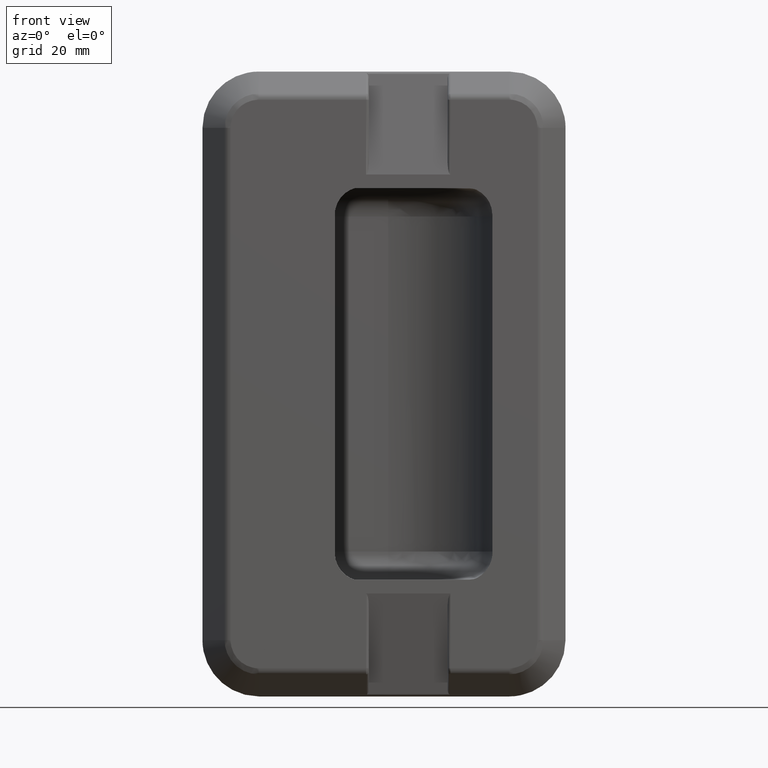
[diagram: clean part render]
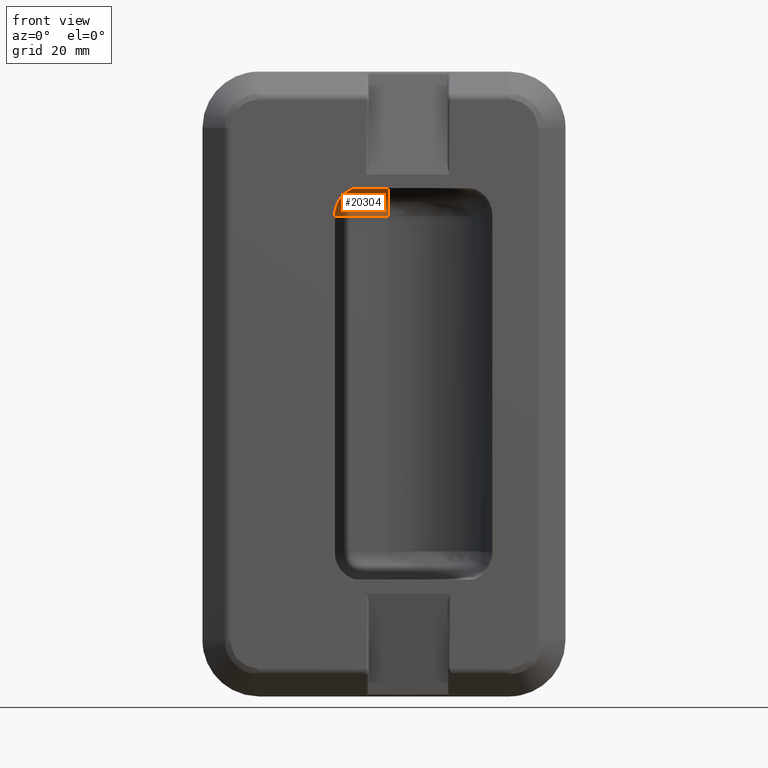
[diagram: same view with one face highlighted and labeled with its STEP entity id]
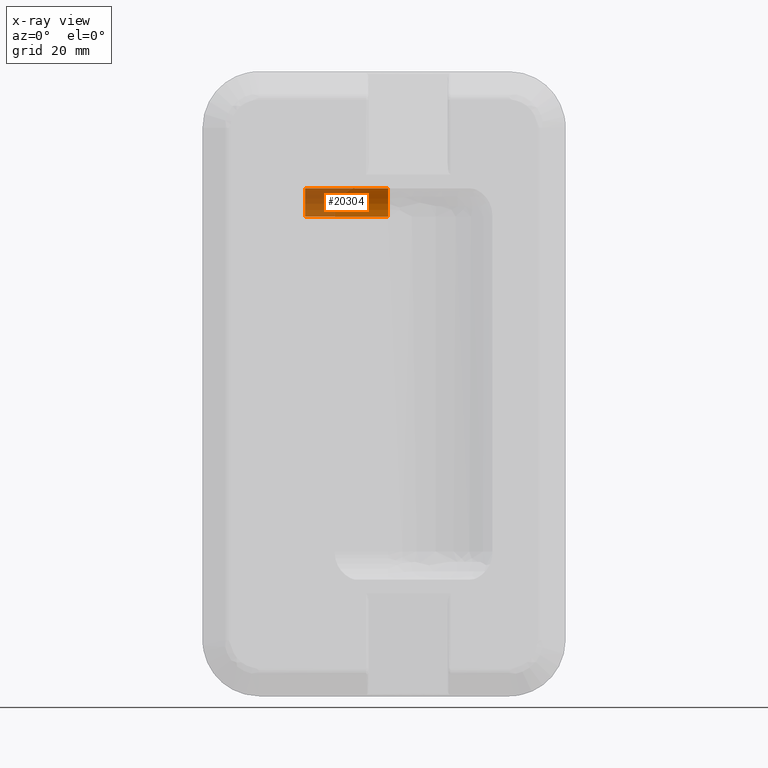
[diagram: x-ray of the same camera — body ghosted, the highlighted face saturated]
A machine part, front view. The second image highlights one B-rep face of the part: STEP entity #20304.
The next image is the same camera in x-ray: the body ghosted, the highlighted face saturated — about 42% of this face is hidden behind the body in this view.
In plain terms, the highlighted face is a freeform B-spline surface patch.
Its self-contained STEP definition (entity closure, byte-faithful):
#20214=CARTESIAN_POINT('',(32.984074000000000,9.000017000000002,34.750000000000000));
#20215=VERTEX_POINT('',#20214);
#20229=CARTESIAN_POINT('',(32.984074000000000,14.000017000000019,29.750000000000000));
#20230=VERTEX_POINT('',#20229);
#20231=CARTESIAN_POINT('',(32.984074000000000,14.000017000000000,29.750000000000000));
#20232=CARTESIAN_POINT('',(32.984073999999993,14.000017000000000,34.749999999999986));
#20233=CARTESIAN_POINT('',(32.984074000000000,9.000017000000002,34.749999999999993));
#20241=(BOUNDED_CURVE()B_SPLINE_CURVE(2,(#20231,#20232,#20233),.UNSPECIFIED.,.F.,.U.)CURVE()GEOMETRIC_REPRESENTATION_ITEM()QUASI_UNIFORM_CURVE()RATIONAL_B_SPLINE_CURVE((1.0,0.707106781186548,1.0))REPRESENTATION_ITEM(''));
#20242=EDGE_CURVE('',#20230,#20215,#20241,.T.);
#20260=CARTESIAN_POINT('',(33.352425850000003,13.995258107909290,29.531903063173321));
#20261=CARTESIAN_POINT('',(17.872439353750000,13.995258107909290,29.531903063173321));
#20262=CARTESIAN_POINT('',(33.352425849999996,14.239689454679919,35.130301322295175));
#20263=CARTESIAN_POINT('',(17.872439353749993,14.239689454679919,35.130301322295175));
#20264=CARTESIAN_POINT('',(33.352425850000003,8.649726539782389,34.737714566159589));
#20265=CARTESIAN_POINT('',(17.872439353749993,8.649726539782389,34.737714566159589));
#20273=(BOUNDED_SURFACE()B_SPLINE_SURFACE(1,2,((#20260,#20262,#20264),(#20261,#20263,#20265)),.UNSPECIFIED.,.F.,.F.,.U.)B_SPLINE_SURFACE_WITH_KNOTS((2,2),(3,3),(0.0,15.479986496250010),(0.0,8.958712699209922),.UNSPECIFIED.)GEOMETRIC_REPRESENTATION_ITEM()RATIONAL_B_SPLINE_SURFACE(((1.0,0.664513898535122,0.996233561259061),(1.0,0.664513898535122,0.996233561259061)))REPRESENTATION_ITEM('')SURFACE());
#20274=CARTESIAN_POINT('',(18.250000000000000,14.000017000000019,29.750000000000000));
#20275=VERTEX_POINT('',#20274);
#20276=CARTESIAN_POINT('',(18.250000000000000,9.000017000000002,34.750000000000000));
#20277=VERTEX_POINT('',#20276);
#20278=CARTESIAN_POINT('',(18.250000000000000,14.000017000000000,29.750000000000000));
#20279=CARTESIAN_POINT('',(18.249999999999996,14.000017000000000,34.749999999999986));
#20280=CARTESIAN_POINT('',(18.250000000000000,9.000017000000002,34.749999999999993));
#20288=(BOUNDED_CURVE()B_SPLINE_CURVE(2,(#20278,#20279,#20280),.UNSPECIFIED.,.F.,.U.)CURVE()GEOMETRIC_REPRESENTATION_ITEM()QUASI_UNIFORM_CURVE()RATIONAL_B_SPLINE_CURVE((1.0,0.707106781186548,1.0))REPRESENTATION_ITEM(''));
#20289=EDGE_CURVE('',#20275,#20277,#20288,.T.);
#20290=ORIENTED_EDGE('',*,*,#20289,.F.);
#20291=CARTESIAN_POINT('',(18.250000000000000,14.000017000000019,29.750000000000000));
#20292=CARTESIAN_POINT('',(32.984074000000000,14.000017000000019,29.750000000000000));
#20293=QUASI_UNIFORM_CURVE('',1,(#20291,#20292),.UNSPECIFIED.,.F.,.U.);
#20294=EDGE_CURVE('',#20275,#20230,#20293,.T.);
#20295=ORIENTED_EDGE('',*,*,#20294,.T.);
#20296=ORIENTED_EDGE('',*,*,#20242,.T.);
#20297=CARTESIAN_POINT('',(32.984074000000000,9.000017000000002,34.750000000000000));
#20298=CARTESIAN_POINT('',(18.250000000000000,9.000017000000002,34.750000000000000));
#20299=QUASI_UNIFORM_CURVE('',1,(#20297,#20298),.UNSPECIFIED.,.F.,.U.);
#20300=EDGE_CURVE('',#20215,#20277,#20299,.T.);
#20301=ORIENTED_EDGE('',*,*,#20300,.T.);
#20302=EDGE_LOOP('',(#20290,#20295,#20296,#20301));
#20303=FACE_OUTER_BOUND('',#20302,.T.);
#20304=ADVANCED_FACE('',(#20303),#20273,.F.);